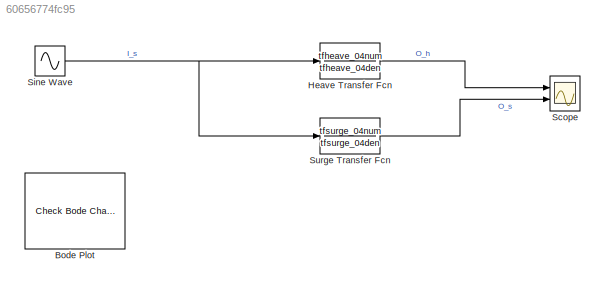
MODEL slx_60656774fc95
KIND model
CONFIG AbsTol = auto
CONFIG EnableMultiTasking = off
CONFIG FixedStep = auto
CONFIG MaxStep = auto
CONFIG MinStep = auto
CONFIG RelTol = 1e-3
CONFIG SampleTimeConstraint = Unconstrained
CONFIG Solver = VariableStepAuto
CONFIG SolverName = VariableStepAuto
CONFIG StartTime = 0.0
CONFIG StopTime = 10.0
BLOCK [Reference] Bode Plot  REF=slctrlblks/Model Verification/Check Bode 
Characteristics
  InstantiateOnLoad = on
  Ports = []
  SourceBlock = slctrlblks/Model Verification/Check Bode \nCharacteristics
  SourceProductBaseCode = SD
  SourceProductName = Simulink Control Design
  SourceType = Checks_Bode
BLOCK [TransferFcn] Heave Transfer Fcn
  Denominator = tfheave_04den
  Numerator = tfheave_04num
BLOCK [Scope] Scope
  Floating = off
  NumInputPorts = 2
  Ports = [2]
  ScopeSpecificationString = Simulink.scopes.TimeScopeBlockCfg('CurrentConfiguration', extmgr.ConfigurationSet(extmgr.Configuration('Core','General UI',true),extmgr.Configuration('Core','Source UI',true),extmgr.Configuration('Sources','WiredSimulink',true),extmgr.Configuration('Visuals','Time Domain',true,'SerializedDisplays',{struct('MinYLimReal','-524229515.26744','MaxYLimReal','571159371.97839','YLabelReal','','MinYLimMag'...<+1469ch>
BLOCK [Sin] Sine Wave
  Amplitude = 100
  Frequency = 2
  Ports = [0, 1]
  SampleTime = 0
BLOCK [TransferFcn] Surge Transfer Fcn
  Denominator = tfsurge_04den
  Numerator = tfsurge_04num
LINE Heave Transfer Fcn:1 -> Scope:1
NET Sine Wave:1 -> Heave Transfer Fcn:1, Surge Transfer Fcn:1
LINE Surge Transfer Fcn:1 -> Scope:2
note: NET lines group one-source signal fan-out (src -> all destinations, sorted); 1:1 wires keep LINE
